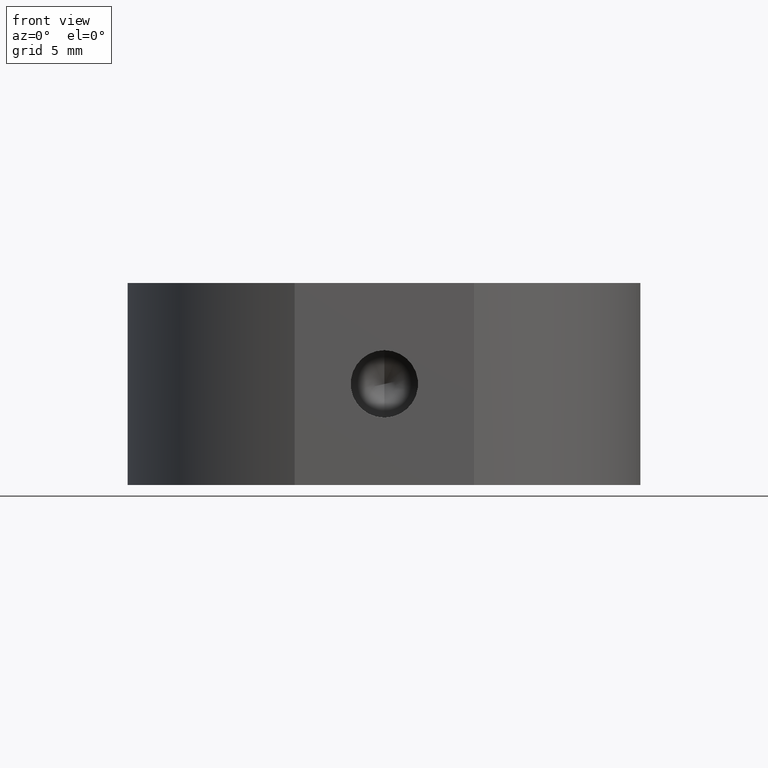
[diagram: clean part render]
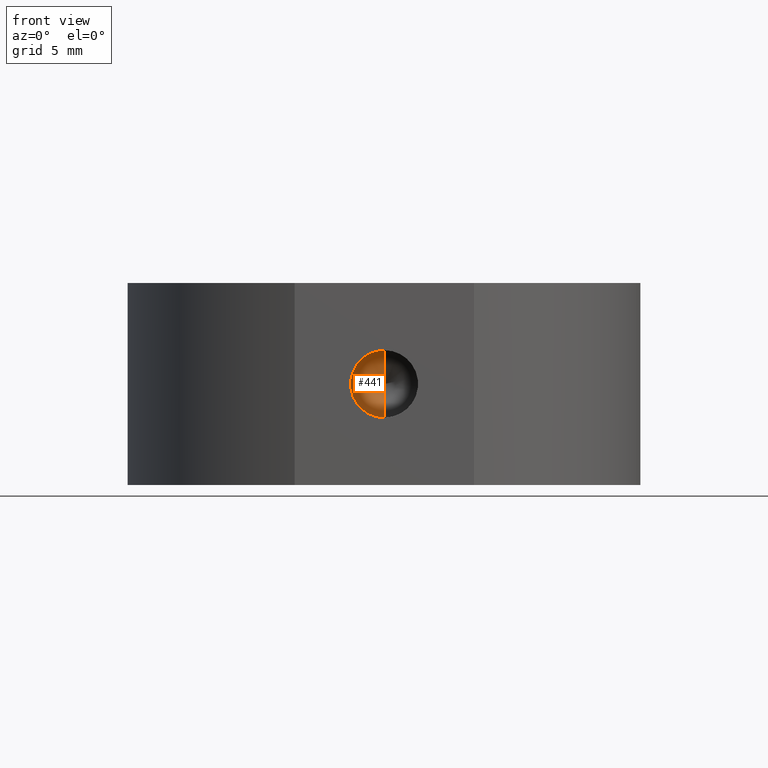
[diagram: same view with one face highlighted and labeled with its STEP entity id]
A machine part, front view. The second image highlights one B-rep face of the part: STEP entity #441.
In plain terms, the highlighted conical surface has half-angle 59 deg.
Its self-contained STEP definition (entity closure, byte-faithful):
#31 = CARTESIAN_POINT ( 'NONE',  ( 5.204170427930421300E-015, -12.35000000000000100, -2.499999999999997800 ) ) ;
#100 = CARTESIAN_POINT ( 'NONE',  ( 5.204170427930421300E-015, -12.35000000000000100, -2.499999999999997800 ) ) ;
#166 = EDGE_LOOP ( 'NONE', ( #295, #1093, #748 ) ) ;
#232 = DIRECTION ( 'NONE',  ( 1.049727191138618000E-016, -0.5150380749100550400, 0.8571673007021117800 ) ) ;
#233 = CARTESIAN_POINT ( 'NONE',  ( 3.489137931955432100E-015, -10.84784845243110000, 0.0000000000000000000 ) ) ;
#283 = DIRECTION ( 'NONE',  ( 0.0000000000000000000, -0.5150380749100550400, -0.8571673007021117800 ) ) ;
#295 = ORIENTED_EDGE ( 'NONE', *, *, #954, .F. ) ;
#337 = VECTOR ( 'NONE', #232, 1000.000000000000000 ) ;
#359 = DIRECTION ( 'NONE',  ( 0.0000000000000000000, 0.0000000000000000000, -1.000000000000000000 ) ) ;
#386 = FACE_OUTER_BOUND ( 'NONE', #166, .T. ) ;
#397 = EDGE_CURVE ( 'NONE', #995, #935, #428, .T. ) ;
#428 = CIRCLE ( 'NONE', #807, 2.499999999999997800 ) ;
#441 = ADVANCED_FACE ( 'NONE', ( #386 ), #817, .F. ) ;
#497 = CARTESIAN_POINT ( 'NONE',  ( 5.204170427930421300E-015, -12.35000000000000100, 0.0000000000000000000 ) ) ;
#506 = EDGE_CURVE ( 'NONE', #880, #995, #693, .T. ) ;
#509 = LINE ( 'NONE', #100, #1020 ) ;
#693 = LINE ( 'NONE', #917, #337 ) ;
#710 = DIRECTION ( 'NONE',  ( -0.0000000000000000000, -1.000000000000000000, -0.0000000000000000000 ) ) ;
#748 = ORIENTED_EDGE ( 'NONE', *, *, #397, .T. ) ;
#807 = AXIS2_PLACEMENT_3D ( 'NONE', #497, #1027, #1034 ) ;
#817 = CONICAL_SURFACE ( 'NONE', #835, 2.499999999999997800, 1.029744258676653400 ) ;
#835 = AXIS2_PLACEMENT_3D ( 'NONE', #884, #710, #359 ) ;
#880 = VERTEX_POINT ( 'NONE', #233 ) ;
#884 = CARTESIAN_POINT ( 'NONE',  ( 5.204170427930421300E-015, -12.35000000000000100, 0.0000000000000000000 ) ) ;
#917 = CARTESIAN_POINT ( 'NONE',  ( 5.510332127717259900E-015, -12.35000000000000100, 2.499999999999997800 ) ) ;
#935 = VERTEX_POINT ( 'NONE', #31 ) ;
#954 = EDGE_CURVE ( 'NONE', #880, #935, #509, .T. ) ;
#978 = CARTESIAN_POINT ( 'NONE',  ( 5.510332127717259900E-015, -12.35000000000000100, 2.499999999999997800 ) ) ;
#995 = VERTEX_POINT ( 'NONE', #978 ) ;
#1020 = VECTOR ( 'NONE', #283, 1000.000000000000000 ) ;
#1027 = DIRECTION ( 'NONE',  ( -0.0000000000000000000, -1.000000000000000000, -0.0000000000000000000 ) ) ;
#1034 = DIRECTION ( 'NONE',  ( 0.0000000000000000000, 0.0000000000000000000, -1.000000000000000000 ) ) ;
#1093 = ORIENTED_EDGE ( 'NONE', *, *, #506, .T. ) ;